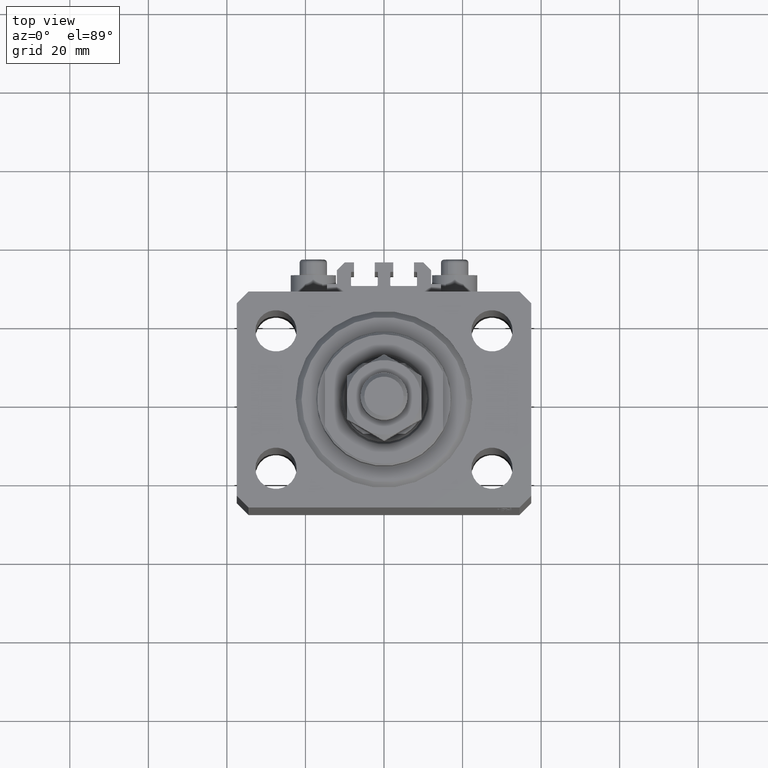
[diagram: clean part render]
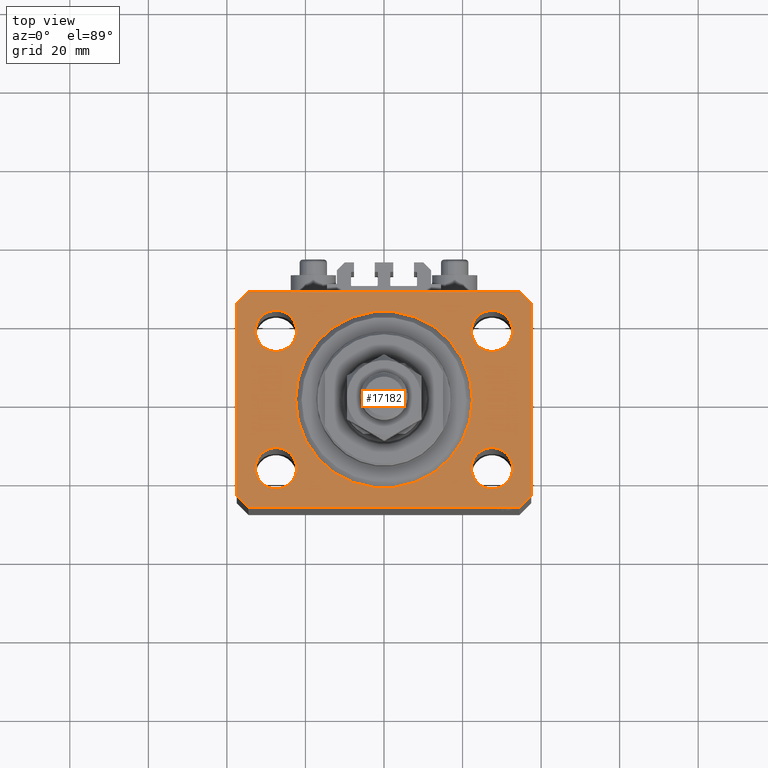
[diagram: same view with one face highlighted and labeled with its STEP entity id]
A machine part, top view. The second image highlights one B-rep face of the part: STEP entity #17182.
In plain terms, the highlighted planar face has unit normal (0, 0, 1).
Its self-contained STEP definition (entity closure, byte-faithful):
#50 = EDGE_CURVE ( 'NONE', #15584, #6219, #25012, .T. ) ;
#280 = DIRECTION ( 'NONE',  ( 1.000000000000000000, 0.000000000000000000, 0.000000000000000000 ) ) ;
#478 = ORIENTED_EDGE ( 'NONE', *, *, #48601, .F. ) ;
#895 = VERTEX_POINT ( 'NONE', #47199 ) ;
#1258 = AXIS2_PLACEMENT_3D ( 'NONE', #12165, #31421, #43048 ) ;
#1486 = VECTOR ( 'NONE', #3022, 1000.000000000000000 ) ;
#1545 = ORIENTED_EDGE ( 'NONE', *, *, #50, .F. ) ;
#3022 = DIRECTION ( 'NONE',  ( -1.000000000000000000, 0.000000000000000000, 0.000000000000000000 ) ) ;
#3314 = CARTESIAN_POINT ( 'NONE',  ( -32.74999999999999289, -17.50000000000000000, 0.000000000000000000 ) ) ;
#3626 = DIRECTION ( 'NONE',  ( 0.7071067811865483499, -0.7071067811865466846, 0.000000000000000000 ) ) ;
#3665 = DIRECTION ( 'NONE',  ( 1.000000000000000000, 0.000000000000000000, 0.000000000000000000 ) ) ;
#4235 = DIRECTION ( 'NONE',  ( 0.000000000000000000, 0.000000000000000000, 1.000000000000000000 ) ) ;
#4821 = EDGE_CURVE ( 'NONE', #29936, #43031, #7231, .T. ) ;
#5125 = DIRECTION ( 'NONE',  ( 1.000000000000000000, 0.000000000000000000, 0.000000000000000000 ) ) ;
#5318 = EDGE_LOOP ( 'NONE', ( #40913, #42834 ) ) ;
#5622 = LINE ( 'NONE', #39014, #17691 ) ;
#6205 = ORIENTED_EDGE ( 'NONE', *, *, #37566, .T. ) ;
#6219 = VERTEX_POINT ( 'NONE', #22716 ) ;
#6253 = LINE ( 'NONE', #36161, #46950 ) ;
#6570 = ORIENTED_EDGE ( 'NONE', *, *, #24564, .T. ) ;
#6695 = FACE_BOUND ( 'NONE', #30591, .T. ) ;
#7231 = LINE ( 'NONE', #25776, #1486 ) ;
#7243 = VERTEX_POINT ( 'NONE', #3314 ) ;
#7663 = CARTESIAN_POINT ( 'NONE',  ( -27.50000000000000000, 17.49999999999999645, 0.000000000000000000 ) ) ;
#7828 = DIRECTION ( 'NONE',  ( 0.000000000000000000, 0.000000000000000000, 1.000000000000000000 ) ) ;
#8395 = CARTESIAN_POINT ( 'NONE',  ( 22.50000000000000355, 0.000000000000000000, 0.000000000000000000 ) ) ;
#8404 = CARTESIAN_POINT ( 'NONE',  ( 37.50000000000051870, 24.49999999999995381, 0.000000000000000000 ) ) ;
#8550 = EDGE_CURVE ( 'NONE', #6219, #15584, #20537, .T. ) ;
#8640 = DIRECTION ( 'NONE',  ( 1.000000000000000000, 0.000000000000000000, 0.000000000000000000 ) ) ;
#8851 = CARTESIAN_POINT ( 'NONE',  ( 0.000000000000000000, 0.000000000000000000, 0.000000000000000000 ) ) ;
#8910 = ORIENTED_EDGE ( 'NONE', *, *, #11925, .T. ) ;
#9359 = CARTESIAN_POINT ( 'NONE',  ( 34.49999999999999289, -27.49999999999999645, 0.000000000000000000 ) ) ;
#9819 = CARTESIAN_POINT ( 'NONE',  ( -37.49999999999999289, -24.50000000000000000, 0.000000000000000000 ) ) ;
#10161 = VERTEX_POINT ( 'NONE', #36813 ) ;
#10169 = CARTESIAN_POINT ( 'NONE',  ( 0.000000000000000000, 0.000000000000000000, 0.000000000000000000 ) ) ;
#10278 = CARTESIAN_POINT ( 'NONE',  ( -34.49999999999998579, -27.49999999999999645, 0.000000000000000000 ) ) ;
#11139 = ORIENTED_EDGE ( 'NONE', *, *, #36154, .T. ) ;
#11161 = VECTOR ( 'NONE', #39275, 1000.000000000000114 ) ;
#11843 = AXIS2_PLACEMENT_3D ( 'NONE', #34992, #7828, #12259 ) ;
#11925 = EDGE_CURVE ( 'NONE', #24732, #16601, #6253, .T. ) ;
#12096 = DIRECTION ( 'NONE',  ( 0.000000000000000000, 0.000000000000000000, 1.000000000000000000 ) ) ;
#12165 = CARTESIAN_POINT ( 'NONE',  ( -27.49999999999999289, -17.50000000000000000, 0.000000000000000000 ) ) ;
#12176 = EDGE_CURVE ( 'NONE', #31655, #7243, #24907, .T. ) ;
#12259 = DIRECTION ( 'NONE',  ( 1.000000000000000000, 0.000000000000000000, 0.000000000000000000 ) ) ;
#12532 = ORIENTED_EDGE ( 'NONE', *, *, #34948, .F. ) ;
#12711 = EDGE_CURVE ( 'NONE', #35982, #13915, #35864, .T. ) ;
#12819 = LINE ( 'NONE', #9359, #11161 ) ;
#12949 = CARTESIAN_POINT ( 'NONE',  ( 27.49999999999999289, -17.50000000000000000, 0.000000000000000000 ) ) ;
#13861 = FACE_BOUND ( 'NONE', #29574, .T. ) ;
#13915 = VERTEX_POINT ( 'NONE', #44666 ) ;
#14347 = FACE_BOUND ( 'NONE', #18437, .T. ) ;
#14447 = CIRCLE ( 'NONE', #19208, 5.250000000000000888 ) ;
#14489 = CIRCLE ( 'NONE', #29488, 5.250000000000000888 ) ;
#14518 = CARTESIAN_POINT ( 'NONE',  ( -22.25000000000000000, 17.49999999999999645, 0.000000000000000000 ) ) ;
#14606 = EDGE_CURVE ( 'NONE', #44398, #24732, #18705, .T. ) ;
#15316 = LINE ( 'NONE', #8404, #33556 ) ;
#15584 = VERTEX_POINT ( 'NONE', #19212 ) ;
#15696 = ORIENTED_EDGE ( 'NONE', *, *, #43697, .F. ) ;
#15888 = AXIS2_PLACEMENT_3D ( 'NONE', #23785, #42820, #42581 ) ;
#15942 = DIRECTION ( 'NONE',  ( 1.076236605503979380E-14, 1.000000000000000000, 0.000000000000000000 ) ) ;
#15990 = ORIENTED_EDGE ( 'NONE', *, *, #12711, .F. ) ;
#16598 = CARTESIAN_POINT ( 'NONE',  ( -22.24999999999999289, -17.50000000000000000, 0.000000000000000000 ) ) ;
#16601 = VERTEX_POINT ( 'NONE', #37208 ) ;
#16909 = VECTOR ( 'NONE', #23173, 1000.000000000000000 ) ;
#17182 = ADVANCED_FACE ( 'NONE', ( #47747, #6695, #13861, #28952, #14347, #48244 ), #44031, .T. ) ;
#17211 = AXIS2_PLACEMENT_3D ( 'NONE', #20739, #31617, #27921 ) ;
#17240 = EDGE_CURVE ( 'NONE', #21229, #44330, #18529, .T. ) ;
#17481 = VECTOR ( 'NONE', #15942, 1000.000000000000000 ) ;
#17691 = VECTOR ( 'NONE', #28361, 1000.000000000000000 ) ;
#18437 = EDGE_LOOP ( 'NONE', ( #478, #15696 ) ) ;
#18491 = CARTESIAN_POINT ( 'NONE',  ( -27.49999999999999289, -17.50000000000000000, 0.000000000000000000 ) ) ;
#18529 = CIRCLE ( 'NONE', #24078, 22.50000000000000355 ) ;
#18705 = LINE ( 'NONE', #44920, #20134 ) ;
#19208 = AXIS2_PLACEMENT_3D ( 'NONE', #34875, #4235, #280 ) ;
#19212 = CARTESIAN_POINT ( 'NONE',  ( 32.75000000000000000, 17.49999999999999289, 0.000000000000000000 ) ) ;
#20134 = VECTOR ( 'NONE', #3626, 1000.000000000000000 ) ;
#20537 = CIRCLE ( 'NONE', #11843, 5.250000000000000888 ) ;
#20739 = CARTESIAN_POINT ( 'NONE',  ( 27.50000000000000000, 17.49999999999999289, 0.000000000000000000 ) ) ;
#20909 = AXIS2_PLACEMENT_3D ( 'NONE', #7663, #12096, #8640 ) ;
#20922 = VERTEX_POINT ( 'NONE', #14518 ) ;
#21229 = VERTEX_POINT ( 'NONE', #25815 ) ;
#22574 = EDGE_CURVE ( 'NONE', #44330, #21229, #40519, .T. ) ;
#22716 = CARTESIAN_POINT ( 'NONE',  ( 22.25000000000000000, 17.49999999999999289, 0.000000000000000000 ) ) ;
#22949 = DIRECTION ( 'NONE',  ( 0.000000000000000000, 0.000000000000000000, 1.000000000000000000 ) ) ;
#23173 = DIRECTION ( 'NONE',  ( -0.7071067811865471286, -0.7071067811865479058, 0.000000000000000000 ) ) ;
#23470 = CARTESIAN_POINT ( 'NONE',  ( 32.74999999999999289, -17.50000000000000000, 0.000000000000000000 ) ) ;
#23785 = CARTESIAN_POINT ( 'NONE',  ( 27.49999999999999289, -17.50000000000000000, 0.000000000000000000 ) ) ;
#24078 = AXIS2_PLACEMENT_3D ( 'NONE', #8851, #27152, #5125 ) ;
#24079 = DIRECTION ( 'NONE',  ( 1.000000000000000000, 0.000000000000000000, 0.000000000000000000 ) ) ;
#24564 = EDGE_CURVE ( 'NONE', #43031, #44897, #38740, .T. ) ;
#24732 = VERTEX_POINT ( 'NONE', #10278 ) ;
#24907 = CIRCLE ( 'NONE', #1258, 5.250000000000000888 ) ;
#25012 = CIRCLE ( 'NONE', #17211, 5.250000000000000888 ) ;
#25501 = ORIENTED_EDGE ( 'NONE', *, *, #14606, .T. ) ;
#25776 = CARTESIAN_POINT ( 'NONE',  ( 34.50000000000056843, 27.50000000000000000, 0.000000000000000000 ) ) ;
#25815 = CARTESIAN_POINT ( 'NONE',  ( -22.50000000000000355, 2.755455298081545172E-15, 0.000000000000000000 ) ) ;
#26641 = CARTESIAN_POINT ( 'NONE',  ( 34.50000000000056843, 27.50000000000000000, 0.000000000000000000 ) ) ;
#27060 = CARTESIAN_POINT ( 'NONE',  ( 37.49999999999999289, -24.50000000000000000, 0.000000000000000000 ) ) ;
#27152 = DIRECTION ( 'NONE',  ( 0.000000000000000000, 0.000000000000000000, 1.000000000000000000 ) ) ;
#27338 = CARTESIAN_POINT ( 'NONE',  ( -34.49999999999999289, 27.50000000000000000, 0.000000000000000000 ) ) ;
#27921 = DIRECTION ( 'NONE',  ( 1.000000000000000000, 0.000000000000000000, 0.000000000000000000 ) ) ;
#28010 = CARTESIAN_POINT ( 'NONE',  ( -37.49999999999999289, 24.50000000000000000, 0.000000000000000000 ) ) ;
#28361 = DIRECTION ( 'NONE',  ( 0.000000000000000000, -1.000000000000000000, 0.000000000000000000 ) ) ;
#28904 = AXIS2_PLACEMENT_3D ( 'NONE', #10169, #30615, #35283 ) ;
#28952 = FACE_BOUND ( 'NONE', #33596, .T. ) ;
#29138 = ORIENTED_EDGE ( 'NONE', *, *, #47775, .T. ) ;
#29488 = AXIS2_PLACEMENT_3D ( 'NONE', #18491, #22949, #3665 ) ;
#29574 = EDGE_LOOP ( 'NONE', ( #15990, #12532 ) ) ;
#29936 = VERTEX_POINT ( 'NONE', #26641 ) ;
#30591 = EDGE_LOOP ( 'NONE', ( #34997, #31792 ) ) ;
#30615 = DIRECTION ( 'NONE',  ( 0.000000000000000000, 0.000000000000000000, 1.000000000000000000 ) ) ;
#31421 = DIRECTION ( 'NONE',  ( 0.000000000000000000, 0.000000000000000000, 1.000000000000000000 ) ) ;
#31617 = DIRECTION ( 'NONE',  ( 0.000000000000000000, 0.000000000000000000, 1.000000000000000000 ) ) ;
#31655 = VERTEX_POINT ( 'NONE', #16598 ) ;
#31792 = ORIENTED_EDGE ( 'NONE', *, *, #41624, .F. ) ;
#32819 = VERTEX_POINT ( 'NONE', #27060 ) ;
#33556 = VECTOR ( 'NONE', #45238, 1000.000000000000114 ) ;
#33596 = EDGE_LOOP ( 'NONE', ( #1545, #48620 ) ) ;
#34488 = LINE ( 'NONE', #37715, #17481 ) ;
#34875 = CARTESIAN_POINT ( 'NONE',  ( -27.50000000000000000, 17.49999999999999645, 0.000000000000000000 ) ) ;
#34948 = EDGE_CURVE ( 'NONE', #13915, #35982, #37184, .T. ) ;
#34992 = CARTESIAN_POINT ( 'NONE',  ( 27.50000000000000000, 17.49999999999999289, 0.000000000000000000 ) ) ;
#34997 = ORIENTED_EDGE ( 'NONE', *, *, #12176, .F. ) ;
#35283 = DIRECTION ( 'NONE',  ( 1.000000000000000000, 0.000000000000000000, -0.000000000000000000 ) ) ;
#35864 = CIRCLE ( 'NONE', #43005, 5.250000000000000888 ) ;
#35982 = VERTEX_POINT ( 'NONE', #23470 ) ;
#36110 = ORIENTED_EDGE ( 'NONE', *, *, #4821, .T. ) ;
#36154 = EDGE_CURVE ( 'NONE', #16601, #32819, #12819, .T. ) ;
#36161 = CARTESIAN_POINT ( 'NONE',  ( -34.49999999999998579, -27.49999999999999645, 0.000000000000000000 ) ) ;
#36679 = CIRCLE ( 'NONE', #20909, 5.250000000000000888 ) ;
#36813 = CARTESIAN_POINT ( 'NONE',  ( -32.75000000000000000, 17.49999999999999645, 0.000000000000000000 ) ) ;
#36916 = CARTESIAN_POINT ( 'NONE',  ( 0.000000000000000000, 0.000000000000000000, 0.000000000000000000 ) ) ;
#37165 = DIRECTION ( 'NONE',  ( 1.000000000000000000, 0.000000000000000000, 0.000000000000000000 ) ) ;
#37184 = CIRCLE ( 'NONE', #15888, 5.250000000000000888 ) ;
#37208 = CARTESIAN_POINT ( 'NONE',  ( 34.49999999999999289, -27.49999999999999645, 0.000000000000000000 ) ) ;
#37566 = EDGE_CURVE ( 'NONE', #32819, #895, #34488, .T. ) ;
#37715 = CARTESIAN_POINT ( 'NONE',  ( 37.49999999999999289, -24.50000000000000000, 0.000000000000000000 ) ) ;
#38123 = ORIENTED_EDGE ( 'NONE', *, *, #48619, .T. ) ;
#38740 = LINE ( 'NONE', #42691, #16909 ) ;
#39014 = CARTESIAN_POINT ( 'NONE',  ( -37.49999999999999289, 24.50000000000000000, 0.000000000000000000 ) ) ;
#39275 = DIRECTION ( 'NONE',  ( 0.7071067811865474617, 0.7071067811865474617, 0.000000000000000000 ) ) ;
#39708 = AXIS2_PLACEMENT_3D ( 'NONE', #36916, #45582, #37165 ) ;
#40519 = CIRCLE ( 'NONE', #39708, 22.50000000000000355 ) ;
#40913 = ORIENTED_EDGE ( 'NONE', *, *, #22574, .F. ) ;
#41624 = EDGE_CURVE ( 'NONE', #7243, #31655, #14489, .T. ) ;
#42559 = EDGE_LOOP ( 'NONE', ( #36110, #6570, #29138, #25501, #8910, #11139, #6205, #38123 ) ) ;
#42581 = DIRECTION ( 'NONE',  ( 1.000000000000000000, 0.000000000000000000, 0.000000000000000000 ) ) ;
#42691 = CARTESIAN_POINT ( 'NONE',  ( -34.49999999999999289, 27.50000000000000000, 0.000000000000000000 ) ) ;
#42820 = DIRECTION ( 'NONE',  ( 0.000000000000000000, 0.000000000000000000, 1.000000000000000000 ) ) ;
#42834 = ORIENTED_EDGE ( 'NONE', *, *, #17240, .F. ) ;
#43005 = AXIS2_PLACEMENT_3D ( 'NONE', #12949, #46823, #24079 ) ;
#43031 = VERTEX_POINT ( 'NONE', #27338 ) ;
#43048 = DIRECTION ( 'NONE',  ( 1.000000000000000000, 0.000000000000000000, 0.000000000000000000 ) ) ;
#43697 = EDGE_CURVE ( 'NONE', #10161, #20922, #14447, .T. ) ;
#44031 = PLANE ( 'NONE',  #28904 ) ;
#44330 = VERTEX_POINT ( 'NONE', #8395 ) ;
#44398 = VERTEX_POINT ( 'NONE', #9819 ) ;
#44666 = CARTESIAN_POINT ( 'NONE',  ( 22.24999999999999289, -17.50000000000000000, 0.000000000000000000 ) ) ;
#44897 = VERTEX_POINT ( 'NONE', #28010 ) ;
#44920 = CARTESIAN_POINT ( 'NONE',  ( -37.49999999999999289, -24.50000000000000000, 0.000000000000000000 ) ) ;
#45238 = DIRECTION ( 'NONE',  ( -0.7071067811865364705, 0.7071067811865584529, 0.000000000000000000 ) ) ;
#45582 = DIRECTION ( 'NONE',  ( 0.000000000000000000, 0.000000000000000000, 1.000000000000000000 ) ) ;
#46823 = DIRECTION ( 'NONE',  ( 0.000000000000000000, 0.000000000000000000, 1.000000000000000000 ) ) ;
#46950 = VECTOR ( 'NONE', #47295, 1000.000000000000000 ) ;
#47199 = CARTESIAN_POINT ( 'NONE',  ( 37.50000000000051870, 24.49999999999995381, 0.000000000000000000 ) ) ;
#47295 = DIRECTION ( 'NONE',  ( 1.000000000000000000, 0.000000000000000000, 0.000000000000000000 ) ) ;
#47747 = FACE_BOUND ( 'NONE', #5318, .T. ) ;
#47775 = EDGE_CURVE ( 'NONE', #44897, #44398, #5622, .T. ) ;
#48244 = FACE_OUTER_BOUND ( 'NONE', #42559, .T. ) ;
#48601 = EDGE_CURVE ( 'NONE', #20922, #10161, #36679, .T. ) ;
#48620 = ORIENTED_EDGE ( 'NONE', *, *, #8550, .F. ) ;
#48619 = EDGE_CURVE ( 'NONE', #895, #29936, #15316, .T. ) ;